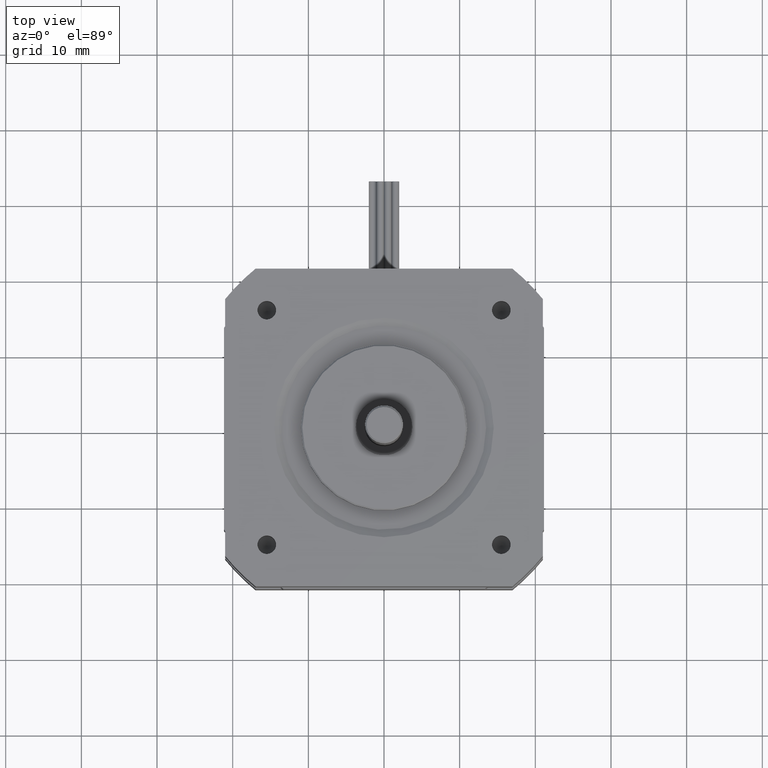
[diagram: clean part render]
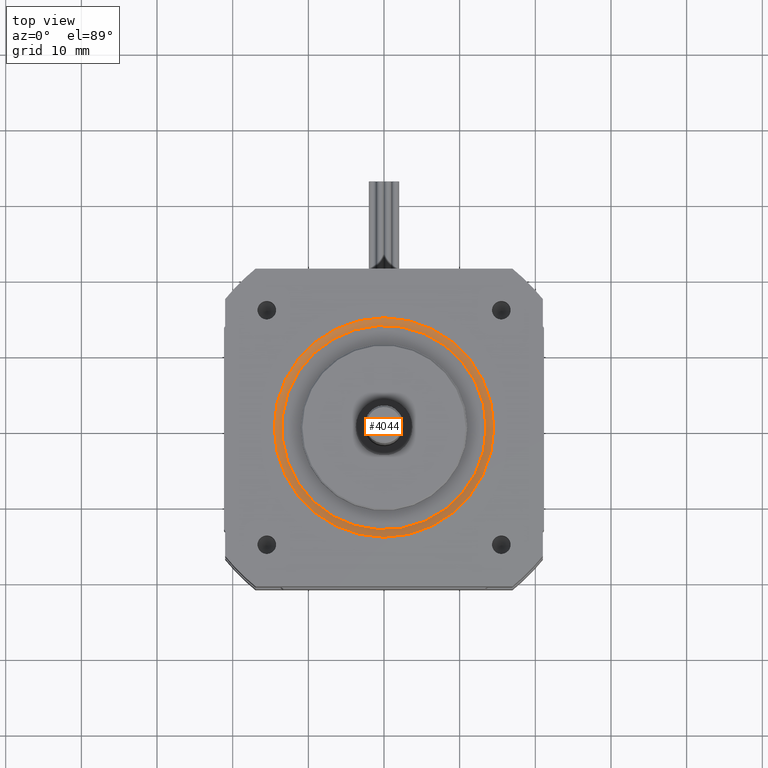
[diagram: same view with one face highlighted and labeled with its STEP entity id]
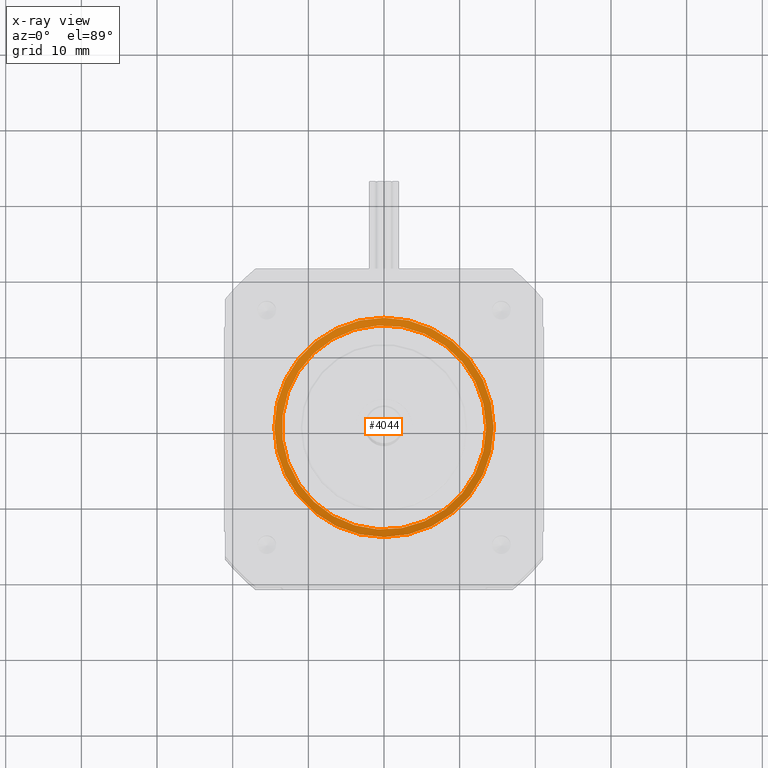
[diagram: x-ray of the same camera — body ghosted, the highlighted face saturated]
A machine part, top view. The second image highlights one B-rep face of the part: STEP entity #4044.
The next image is the same camera in x-ray: the body ghosted, the highlighted face saturated — about 0% of this face is hidden behind the body in this view.
In plain terms, the highlighted conical surface has half-angle 63.435 deg.
Its self-contained STEP definition (entity closure, byte-faithful):
#746=FACE_BOUND('',#1169,.T.);
#900=FACE_OUTER_BOUND('',#1168,.T.);
#1168=EDGE_LOOP('',(#2768));
#1169=EDGE_LOOP('',(#2769));
#1508=CIRCLE('',#4338,13.5);
#1509=CIRCLE('',#4339,14.5);
#1772=VERTEX_POINT('',#6217);
#1773=VERTEX_POINT('',#6219);
#2178=EDGE_CURVE('',#1772,#1772,#1508,.T.);
#2179=EDGE_CURVE('',#1773,#1773,#1509,.T.);
#2768=ORIENTED_EDGE('',*,*,#2178,.F.);
#2769=ORIENTED_EDGE('',*,*,#2179,.T.);
#3839=CONICAL_SURFACE('',#4337,14.,63.434948822922);
#4044=ADVANCED_FACE('',(#900,#746),#3839,.F.);
#4337=AXIS2_PLACEMENT_3D('',#6216,#4924,#4925);
#4338=AXIS2_PLACEMENT_3D('',#6218,#4926,#4927);
#4339=AXIS2_PLACEMENT_3D('',#6220,#4928,#4929);
#4924=DIRECTION('center_axis',(-8.74300631892311E-16,-2.59037577520082E-32,
1.));
#4925=DIRECTION('ref_axis',(-1.,-7.54604712049907E-17,-8.74300631892311E-16));
#4926=DIRECTION('center_axis',(-8.74300631892311E-16,-2.59037577520082E-32,
1.));
#4927=DIRECTION('ref_axis',(-1.,-7.54604712049907E-17,-8.74300631892311E-16));
#4928=DIRECTION('center_axis',(-8.74300631892311E-16,-2.59037577520082E-32,
1.));
#4929=DIRECTION('ref_axis',(-1.,-7.54604712049907E-17,-8.74300631892311E-16));
#6216=CARTESIAN_POINT('Origin',(-9.64535887989694E-15,4.73220975404338E-15,
5.74999999999989));
#6217=CARTESIAN_POINT('',(13.5,7.40419911531075E-15,5.4999999999999));
#6218=CARTESIAN_POINT('Origin',(-9.42678372192386E-15,4.73220975404338E-15,
5.49999999999989));
#6219=CARTESIAN_POINT('',(14.5,7.60206558651575E-15,5.9999999999999));
#6220=CARTESIAN_POINT('Origin',(-9.86393403787002E-15,4.73220975404338E-15,
5.99999999999989));